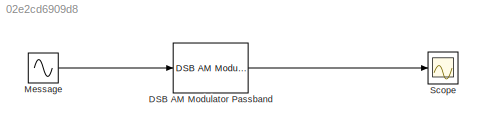
MODEL slx_02e2cd6909d8
KIND model
CONFIG AbsTol = auto
CONFIG EnableMultiTasking = off
CONFIG FixedStep = auto
CONFIG MaxStep = auto
CONFIG MinStep = auto
CONFIG RelTol = 1e-3
CONFIG SampleTimeConstraint = Unconstrained
CONFIG Solver = VariableStepAuto
CONFIG SolverName = VariableStepAuto
CONFIG StartTime = 0.0
CONFIG StopTime = 10.0
BLOCK [Reference] DSB AM Modulator Passband  REF=commanapbnd3/DSB AM
Modulator
Passband
  Ports = [1, 1]
  SourceBlock = commanapbnd3/DSB AM\nModulator\nPassband
  SourceProductBaseCode = CM
  SourceProductName = Communications Toolbox
  SourceType = DSB AM Modulator Passband
BLOCK [Sin] Message
  Frequency = 5
  Ports = [0, 1]
  SampleTime = 1/5000
BLOCK [Scope] Scope
  Floating = off
  NumInputPorts = 1
  Ports = [1]
  ScopeSpecificationString = Simulink.scopes.TimeScopeBlockCfg('CurrentConfiguration', extmgr.ConfigurationSet(extmgr.Configuration('Core','General UI',true),extmgr.Configuration('Core','Source UI',true),extmgr.Configuration('Sources','WiredSimulink',true),extmgr.Configuration('Visuals','Time Domain',true,'SerializedDisplays',{struct('MinYLimReal','-2.49981','MaxYLimReal','2.49988','YLabelReal','','MinYLimMag','0.00000','MaxY...<+1345ch>
LINE DSB AM Modulator Passband:1 -> Scope:1
LINE Message:1 -> DSB AM Modulator Passband:1
